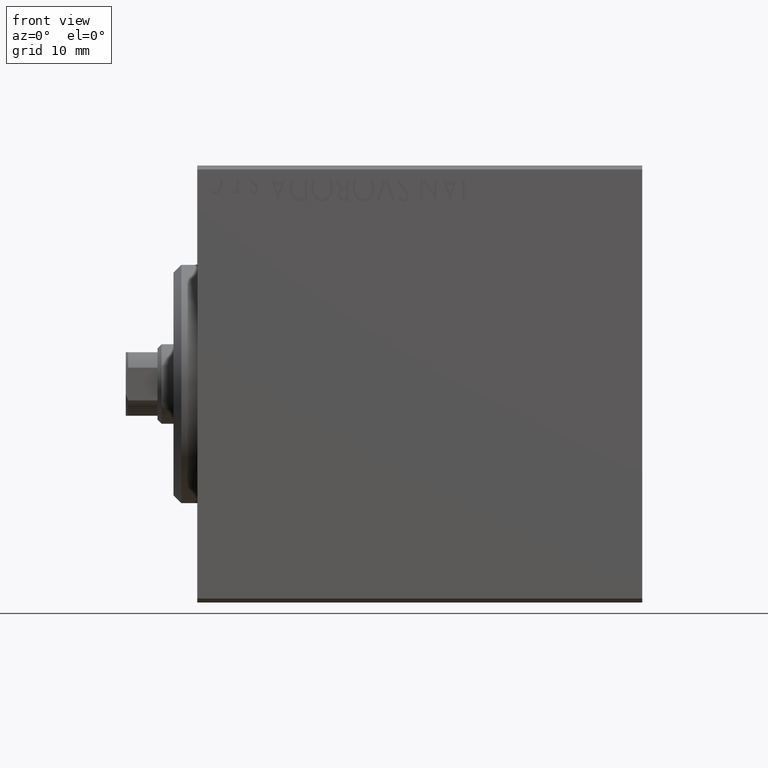
[diagram: clean part render]
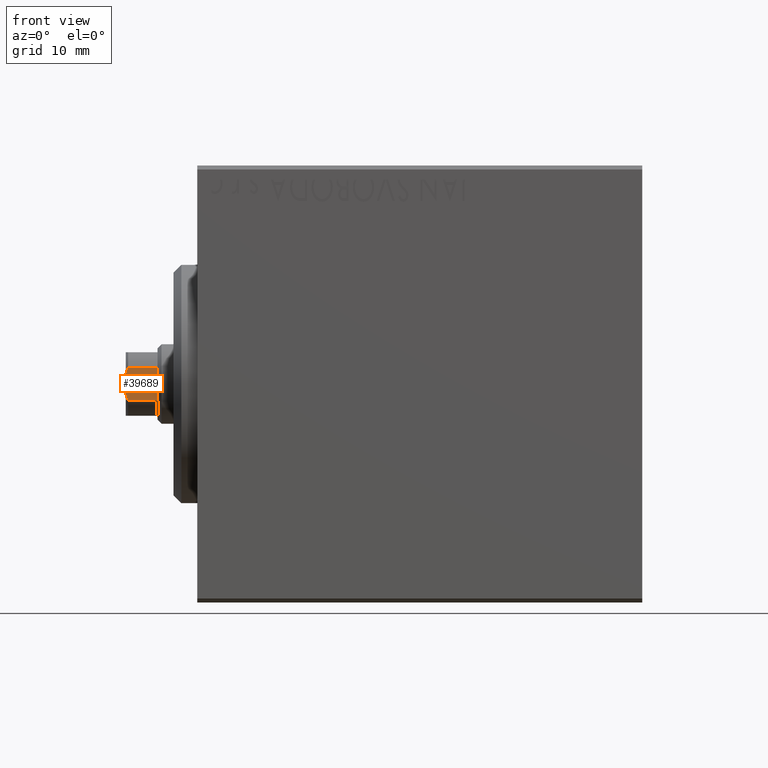
[diagram: same view with one face highlighted and labeled with its STEP entity id]
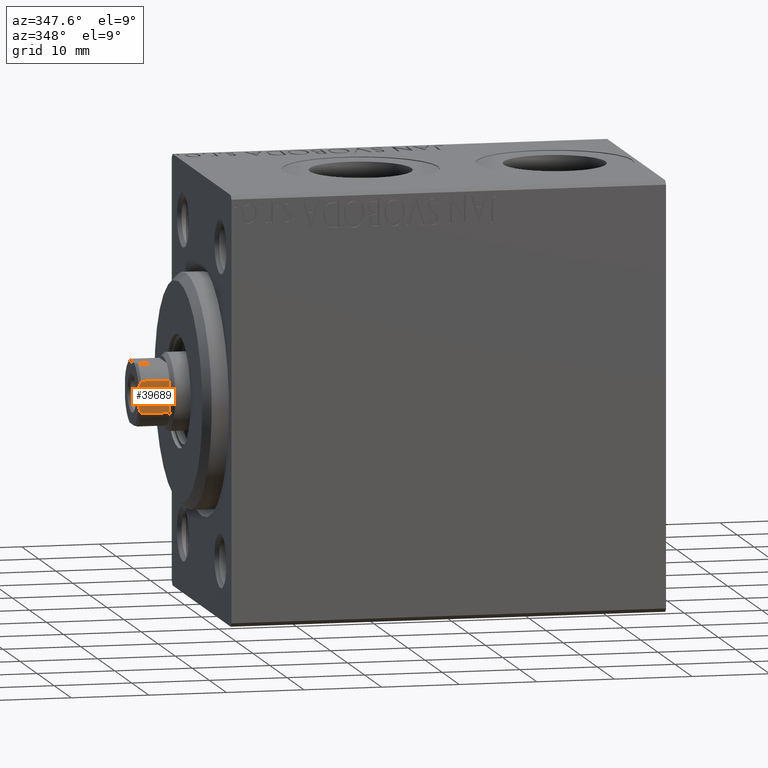
[diagram: same view with one face highlighted and labeled with its STEP entity id]
A machine part, front view. The second image highlights one B-rep face of the part: STEP entity #39689.
A second angle (auxiliary view) of the same face is appended — the face is thin or edge-on in the first view.
In plain terms, the highlighted planar face has unit normal (0, 1, 0).
Its self-contained STEP definition (entity closure, byte-faithful):
#1074 = LINE ( 'NONE', #35161, #37454 ) ;
#2740 = CARTESIAN_POINT ( 'NONE',  ( -2.061552812808831181, -3.999999999999999112, 59.70000000000000995 ) ) ;
#2775 = EDGE_CURVE ( 'NONE', #16696, #11858, #17810, .T. ) ;
#2889 = CARTESIAN_POINT ( 'NONE',  ( -2.061552812808831181, -3.999999999999999112, 56.00000000000002132 ) ) ;
#3087 = CARTESIAN_POINT ( 'NONE',  ( 1.280624847486517393, -4.000000000000001776, 60.00000000000000000 ) ) ;
#3188 = CARTESIAN_POINT ( 'NONE',  ( 1.280624847486517393, -4.000000000000001776, 60.00000000000000000 ) ) ;
#3430 = ORIENTED_EDGE ( 'NONE', *, *, #32385, .T. ) ;
#3530 = CARTESIAN_POINT ( 'NONE',  ( -3.999999999999998224, -4.000000000000001776, 60.00000000000000000 ) ) ;
#3675 = ORIENTED_EDGE ( 'NONE', *, *, #10703, .T. ) ;
#4355 = CARTESIAN_POINT ( 'NONE',  ( -1.807533033248848175, -4.000000000000001776, 59.81637226468021851 ) ) ;
#4611 = DIRECTION ( 'NONE',  ( 0.000000000000000000, -0.000000000000000000, 1.000000000000000000 ) ) ;
#5814 = EDGE_LOOP ( 'NONE', ( #13089, #3430, #23009, #3675, #26406, #13802 ) ) ;
#6725 = B_SPLINE_CURVE_WITH_KNOTS ( 'NONE', 3,
 ( #8169, #25200, #4355, #21377 ),
 .UNSPECIFIED., .F., .F.,
 ( 4, 4 ),
 ( 0.000000000000000000, 0.0008365694753111217394 ),
 .UNSPECIFIED. ) ;
#7474 = VERTEX_POINT ( 'NONE', #2740 ) ;
#7649 = VECTOR ( 'NONE', #40039, 1000.000000000000000 ) ;
#8169 = CARTESIAN_POINT ( 'NONE',  ( -1.280624847486591555, -4.000000000000001776, 60.00000000000000000 ) ) ;
#8404 = DIRECTION ( 'NONE',  ( -0.000000000000000000, -0.000000000000000000, 1.000000000000000000 ) ) ;
#9767 = CARTESIAN_POINT ( 'NONE',  ( 2.061552812808831181, -3.999999999999999112, 56.00000000000002132 ) ) ;
#10703 = EDGE_CURVE ( 'NONE', #30333, #7474, #6725, .T. ) ;
#11101 = CARTESIAN_POINT ( 'NONE',  ( 2.061552812808831181, -3.999999999999999112, -0.001000000000001000089 ) ) ;
#11858 = VERTEX_POINT ( 'NONE', #39051 ) ;
#12664 = VECTOR ( 'NONE', #40766, 1000.000000000000000 ) ;
#13089 = ORIENTED_EDGE ( 'NONE', *, *, #2775, .T. ) ;
#13633 = VERTEX_POINT ( 'NONE', #2889 ) ;
#13802 = ORIENTED_EDGE ( 'NONE', *, *, #36500, .T. ) ;
#15370 = LINE ( 'NONE', #42520, #7649 ) ;
#16696 = VERTEX_POINT ( 'NONE', #9767 ) ;
#17195 = CARTESIAN_POINT ( 'NONE',  ( 1.548028007149072183, -4.000000000000001776, 59.91846592129516580 ) ) ;
#17810 = LINE ( 'NONE', #11101, #19186 ) ;
#18487 = PLANE ( 'NONE',  #44224 ) ;
#18645 = EDGE_CURVE ( 'NONE', #13633, #7474, #1074, .T. ) ;
#19186 = VECTOR ( 'NONE', #8404, 1000.000000000000000 ) ;
#20362 = VERTEX_POINT ( 'NONE', #3188 ) ;
#21377 = CARTESIAN_POINT ( 'NONE',  ( -2.061552812808831181, -3.999999999999999112, 59.70000000000000995 ) ) ;
#23009 = ORIENTED_EDGE ( 'NONE', *, *, #37011, .F. ) ;
#25200 = CARTESIAN_POINT ( 'NONE',  ( -1.548028007149119700, -4.000000000000001776, 59.91846592129517290 ) ) ;
#25934 = CARTESIAN_POINT ( 'NONE',  ( -1.280624847486591555, -4.000000000000001776, 60.00000000000000000 ) ) ;
#26406 = ORIENTED_EDGE ( 'NONE', *, *, #18645, .F. ) ;
#28384 = FACE_OUTER_BOUND ( 'NONE', #5814, .T. ) ;
#29973 = B_SPLINE_CURVE_WITH_KNOTS ( 'NONE', 3,
 ( #37620, #34032, #17195, #3087 ),
 .UNSPECIFIED., .F., .F.,
 ( 4, 4 ),
 ( 0.000000000000000000, 0.0008365694753112034882 ),
 .UNSPECIFIED. ) ;
#30333 = VERTEX_POINT ( 'NONE', #25934 ) ;
#30437 = LINE ( 'NONE', #3530, #12664 ) ;
#32385 = EDGE_CURVE ( 'NONE', #11858, #20362, #29973, .T. ) ;
#34032 = CARTESIAN_POINT ( 'NONE',  ( 1.807533033248826637, -3.999999999999999112, 59.81637226468020430 ) ) ;
#34942 = DIRECTION ( 'NONE',  ( -0.000000000000000000, -0.000000000000000000, 1.000000000000000000 ) ) ;
#35161 = CARTESIAN_POINT ( 'NONE',  ( -2.061552812808831181, -3.999999999999999112, -0.001000000000001000089 ) ) ;
#36500 = EDGE_CURVE ( 'NONE', #13633, #16696, #15370, .T. ) ;
#37011 = EDGE_CURVE ( 'NONE', #30333, #20362, #30437, .T. ) ;
#37454 = VECTOR ( 'NONE', #34942, 1000.000000000000000 ) ;
#37620 = CARTESIAN_POINT ( 'NONE',  ( 2.061552812808831181, -3.999999999999999112, 59.69999999999997442 ) ) ;
#38470 = CARTESIAN_POINT ( 'NONE',  ( -3.999999999999998224, -4.000000000000001776, 60.00000000000000000 ) ) ;
#39051 = CARTESIAN_POINT ( 'NONE',  ( 2.061552812808831181, -3.999999999999999112, 59.69999999999997442 ) ) ;
#39689 = ADVANCED_FACE ( 'NONE', ( #28384 ), #18487, .F. ) ;
#40039 = DIRECTION ( 'NONE',  ( 1.000000000000000000, 0.000000000000000000, 0.000000000000000000 ) ) ;
#40766 = DIRECTION ( 'NONE',  ( 1.000000000000000000, 0.000000000000000000, 0.000000000000000000 ) ) ;
#42279 = DIRECTION ( 'NONE',  ( 0.000000000000000000, 1.000000000000000000, 0.000000000000000000 ) ) ;
#42520 = CARTESIAN_POINT ( 'NONE',  ( -3.999999999999998224, -4.000000000000001776, 56.00000000000000000 ) ) ;
#44224 = AXIS2_PLACEMENT_3D ( 'NONE', #38470, #42279, #4611 ) ;